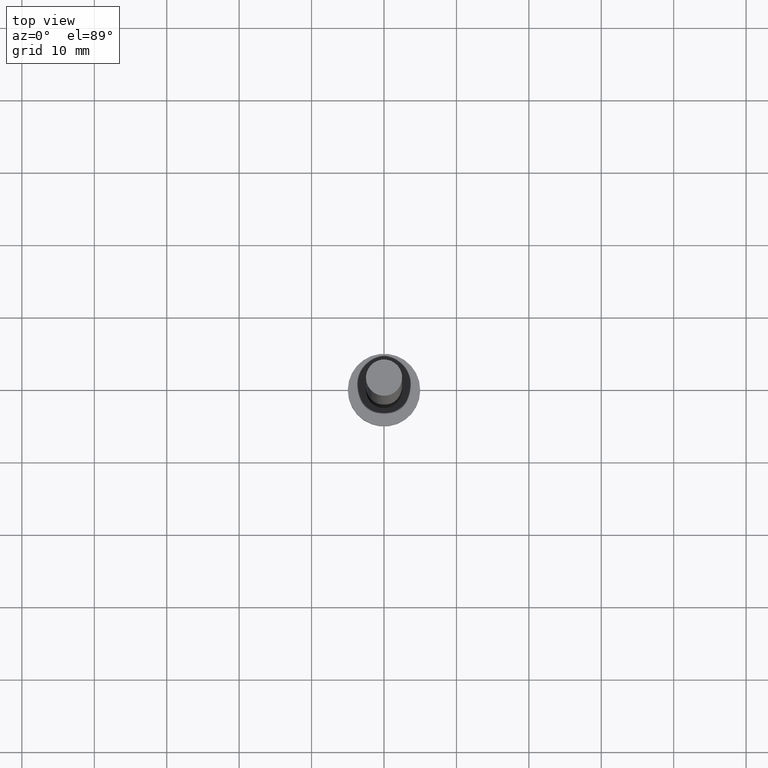
[diagram: clean part render]
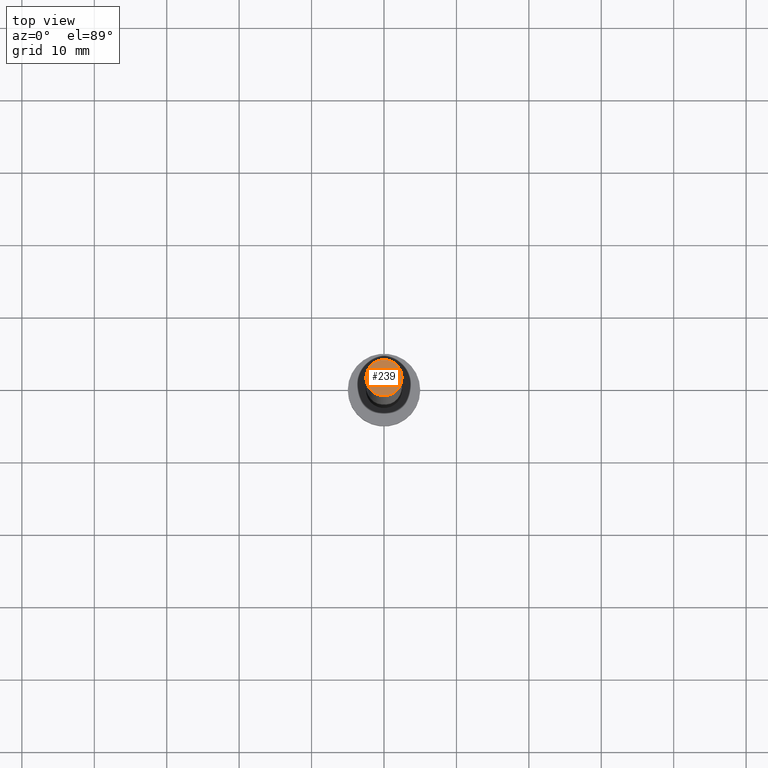
[diagram: same view with one face highlighted and labeled with its STEP entity id]
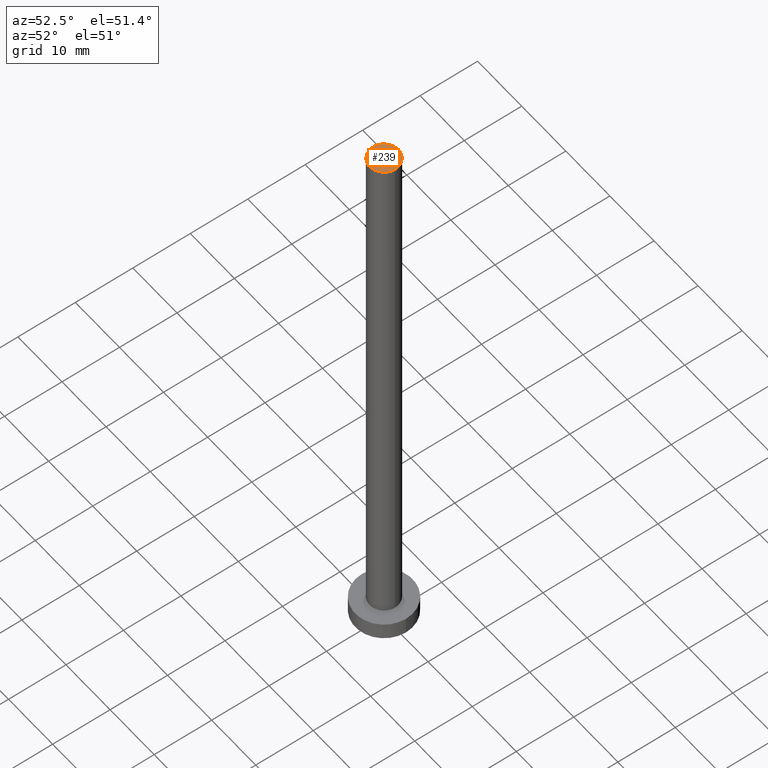
[diagram: same view with one face highlighted and labeled with its STEP entity id]
A machine part, top view. The second image highlights one B-rep face of the part: STEP entity #239.
A second angle (auxiliary view) of the same face is appended — the face is thin or edge-on in the first view.
In plain terms, the highlighted planar face has unit normal (0, 0, 1).
Its self-contained STEP definition (entity closure, byte-faithful):
#12 = EDGE_LOOP ( 'NONE', ( #79, #196 ) ) ;
#40 = DIRECTION ( 'NONE',  ( 0.000000000000000000, 0.000000000000000000, 1.000000000000000000 ) ) ;
#42 = VERTEX_POINT ( 'NONE', #177 ) ;
#62 = PLANE ( 'NONE',  #191 ) ;
#79 = ORIENTED_EDGE ( 'NONE', *, *, #215, .T. ) ;
#84 = VERTEX_POINT ( 'NONE', #110 ) ;
#91 = AXIS2_PLACEMENT_3D ( 'NONE', #162, #245, #192 ) ;
#101 = CIRCLE ( 'NONE', #169, 2.500000000000000000 ) ;
#110 = CARTESIAN_POINT ( 'NONE',  ( 2.500000000000000000, 3.061616997868382648E-16, 100.0000000000000000 ) ) ;
#120 = DIRECTION ( 'NONE',  ( 1.000000000000000000, 0.000000000000000000, -0.000000000000000000 ) ) ;
#138 = CARTESIAN_POINT ( 'NONE',  ( 0.000000000000000000, 0.000000000000000000, 100.0000000000000000 ) ) ;
#139 = DIRECTION ( 'NONE',  ( 1.000000000000000000, 0.000000000000000000, 0.000000000000000000 ) ) ;
#159 = CIRCLE ( 'NONE', #91, 2.500000000000000000 ) ;
#162 = CARTESIAN_POINT ( 'NONE',  ( 0.000000000000000000, 0.000000000000000000, 100.0000000000000000 ) ) ;
#169 = AXIS2_PLACEMENT_3D ( 'NONE', #212, #175, #139 ) ;
#175 = DIRECTION ( 'NONE',  ( 0.000000000000000000, 0.000000000000000000, 1.000000000000000000 ) ) ;
#177 = CARTESIAN_POINT ( 'NONE',  ( -2.500000000000000000, 0.000000000000000000, 100.0000000000000000 ) ) ;
#191 = AXIS2_PLACEMENT_3D ( 'NONE', #138, #40, #120 ) ;
#192 = DIRECTION ( 'NONE',  ( 1.000000000000000000, 0.000000000000000000, 0.000000000000000000 ) ) ;
#196 = ORIENTED_EDGE ( 'NONE', *, *, #199, .T. ) ;
#199 = EDGE_CURVE ( 'NONE', #84, #42, #159, .T. ) ;
#210 = FACE_OUTER_BOUND ( 'NONE', #12, .T. ) ;
#212 = CARTESIAN_POINT ( 'NONE',  ( 0.000000000000000000, 0.000000000000000000, 100.0000000000000000 ) ) ;
#215 = EDGE_CURVE ( 'NONE', #42, #84, #101, .T. ) ;
#239 = ADVANCED_FACE ( 'NONE', ( #210 ), #62, .T. ) ;
#245 = DIRECTION ( 'NONE',  ( 0.000000000000000000, 0.000000000000000000, 1.000000000000000000 ) ) ;